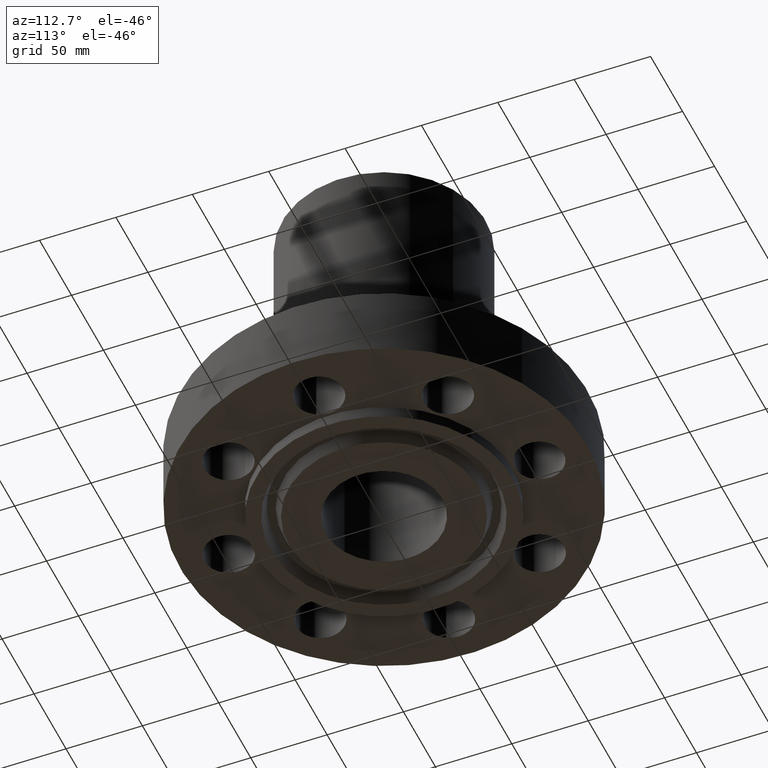
[diagram: clean part render]
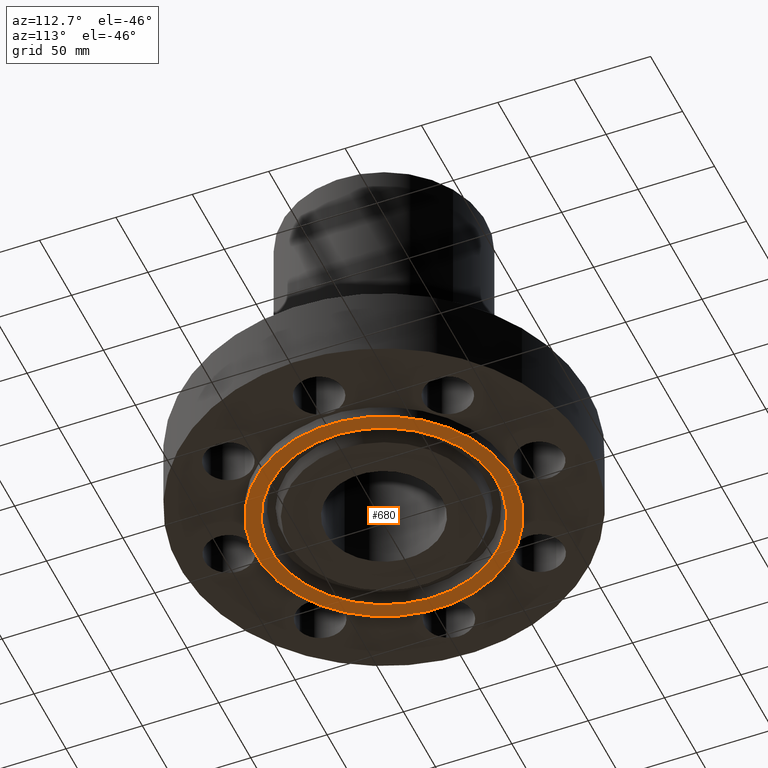
[diagram: same view with one face highlighted and labeled with its STEP entity id]
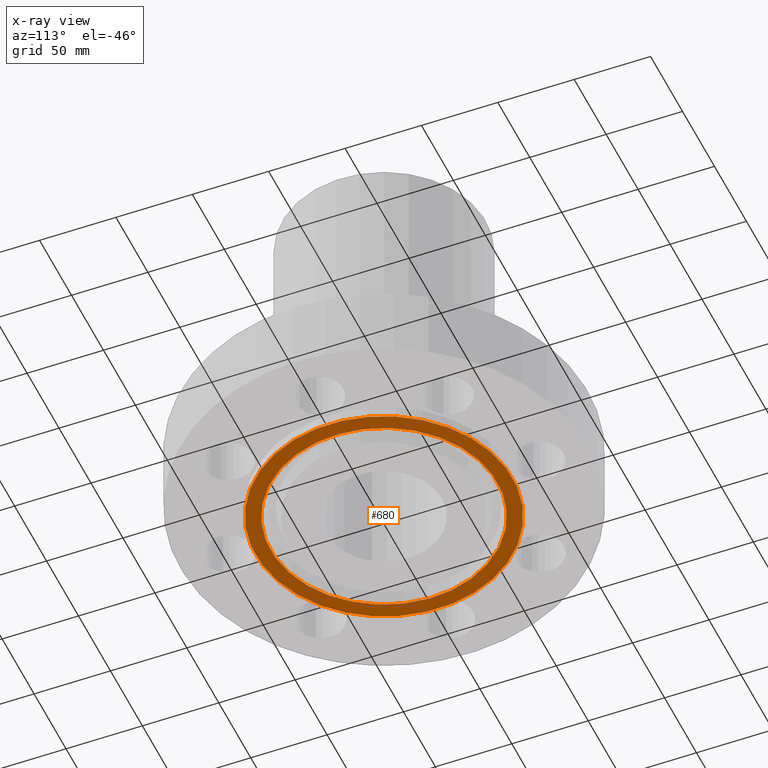
[diagram: x-ray of the same camera — body ghosted, the highlighted face saturated]
A machine part, auxiliary view. The second image highlights one B-rep face of the part: STEP entity #680.
The next image is the same camera in x-ray: the body ghosted, the highlighted face saturated — about 0% of this face is hidden behind the body in this view.
In plain terms, the highlighted planar face has unit normal (0, 0, -1).
Its self-contained STEP definition (entity closure, byte-faithful):
#438=AXIS2_PLACEMENT_3D('Plane Axis2P3D',#435,#436,#437) ;
#629=AXIS2_PLACEMENT_3D('Circle Axis2P3D',#627,#628,$) ;
#648=AXIS2_PLACEMENT_3D('Circle Axis2P3D',#646,#647,$) ;
#660=AXIS2_PLACEMENT_3D('Circle Axis2P3D',#658,#659,$) ;
#669=AXIS2_PLACEMENT_3D('Circle Axis2P3D',#667,#668,$) ;
#435=CARTESIAN_POINT('Axis2P3D Location',(0.,1.50000000001,-0.313000000001)) ;
#624=CARTESIAN_POINT('Vertex',(-1.40088142381,-2.56429624585,-0.313000000001)) ;
#627=CARTESIAN_POINT('Axis2P3D Location',(0.,0.,-0.313000000001)) ;
#631=CARTESIAN_POINT('Vertex',(1.40088142381,2.56429624585,-0.313000000001)) ;
#646=CARTESIAN_POINT('Axis2P3D Location',(0.,0.,-0.313000000001)) ;
#658=CARTESIAN_POINT('Axis2P3D Location',(0.,0.,-0.313000000001)) ;
#662=CARTESIAN_POINT('Vertex',(-1.58809709663,-2.90699223627,-0.313000000001)) ;
#664=CARTESIAN_POINT('Vertex',(1.58809709663,2.90699223627,-0.313000000001)) ;
#667=CARTESIAN_POINT('Axis2P3D Location',(0.,0.,-0.313000000001)) ;
#436=DIRECTION('Axis2P3D Direction',(0.,0.,-0.0393700787402)) ;
#437=DIRECTION('Axis2P3D XDirection',(0.0393700787402,0.,0.)) ;
#628=DIRECTION('Axis2P3D Direction',(0.,0.,-0.0393700787402)) ;
#647=DIRECTION('Axis2P3D Direction',(0.,0.,-0.0393700787402)) ;
#659=DIRECTION('Axis2P3D Direction',(0.,0.,-0.0393700787402)) ;
#668=DIRECTION('Axis2P3D Direction',(0.,0.,-0.0393700787402)) ;
#673=ORIENTED_EDGE('',*,*,#666,.T.) ;
#674=ORIENTED_EDGE('',*,*,#671,.T.) ;
#677=ORIENTED_EDGE('',*,*,#650,.F.) ;
#678=ORIENTED_EDGE('',*,*,#633,.F.) ;
#679=FACE_BOUND('',#676,.T.) ;
#680=ADVANCED_FACE('PartBody',(#675,#679),#439,.T.) ;
#630=CIRCLE('generated circle',#629,2.92200000001) ;
#649=CIRCLE('generated circle',#648,2.92200000001) ;
#661=CIRCLE('generated circle',#660,3.31250000001) ;
#670=CIRCLE('generated circle',#669,3.31250000001) ;
#633=EDGE_CURVE('',#625,#632,#630,.T.) ;
#650=EDGE_CURVE('',#632,#625,#649,.T.) ;
#666=EDGE_CURVE('',#663,#665,#661,.T.) ;
#671=EDGE_CURVE('',#665,#663,#670,.T.) ;
#672=EDGE_LOOP('',(#673,#674)) ;
#676=EDGE_LOOP('',(#677,#678)) ;
#675=FACE_OUTER_BOUND('',#672,.T.) ;
#439=PLANE('',#438) ;
#625=VERTEX_POINT('',#624) ;
#632=VERTEX_POINT('',#631) ;
#663=VERTEX_POINT('',#662) ;
#665=VERTEX_POINT('',#664) ;